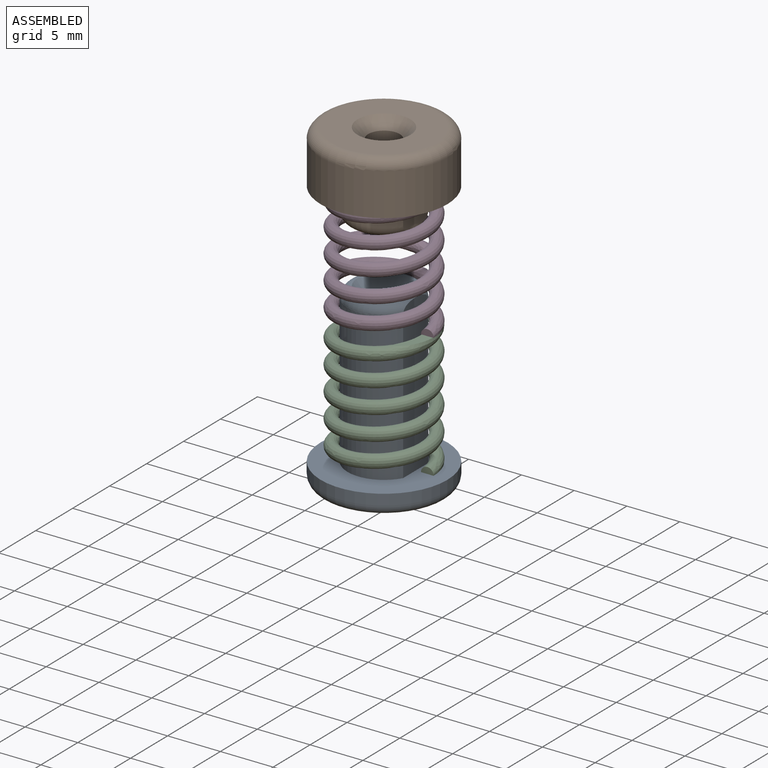
[diagram: assembled view]
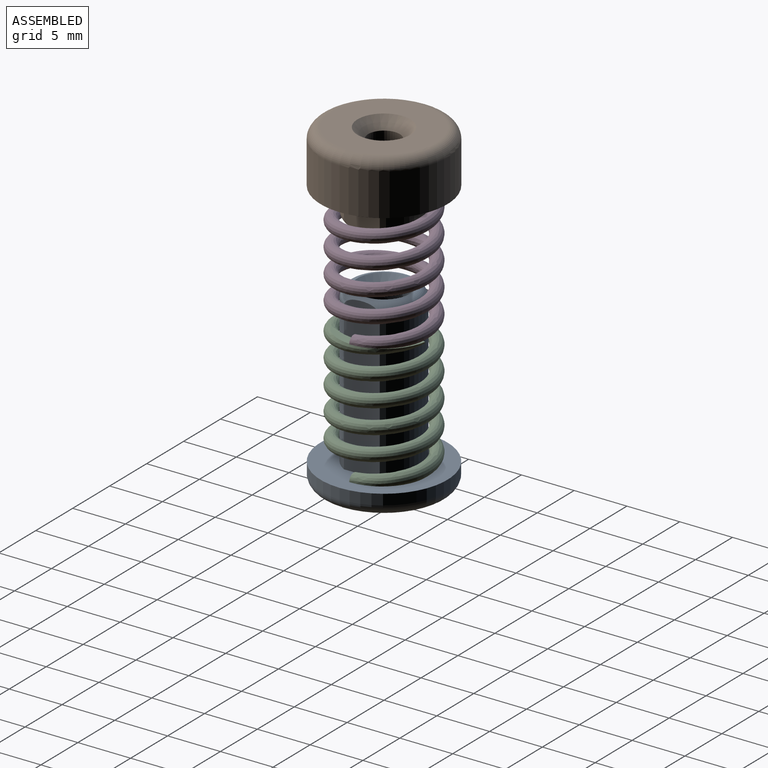
[diagram: assembled view, second angle]
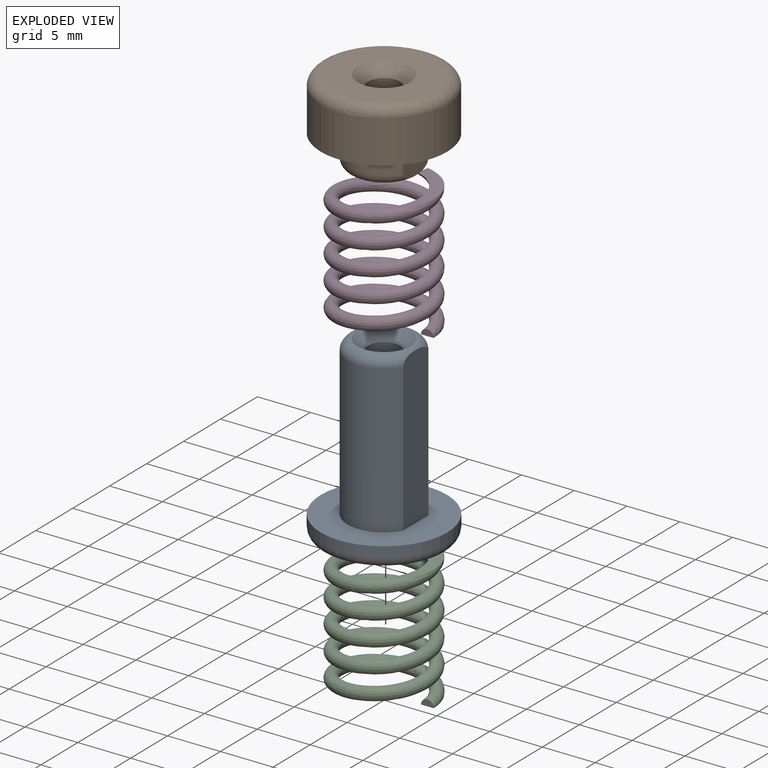
[diagram: exploded view]
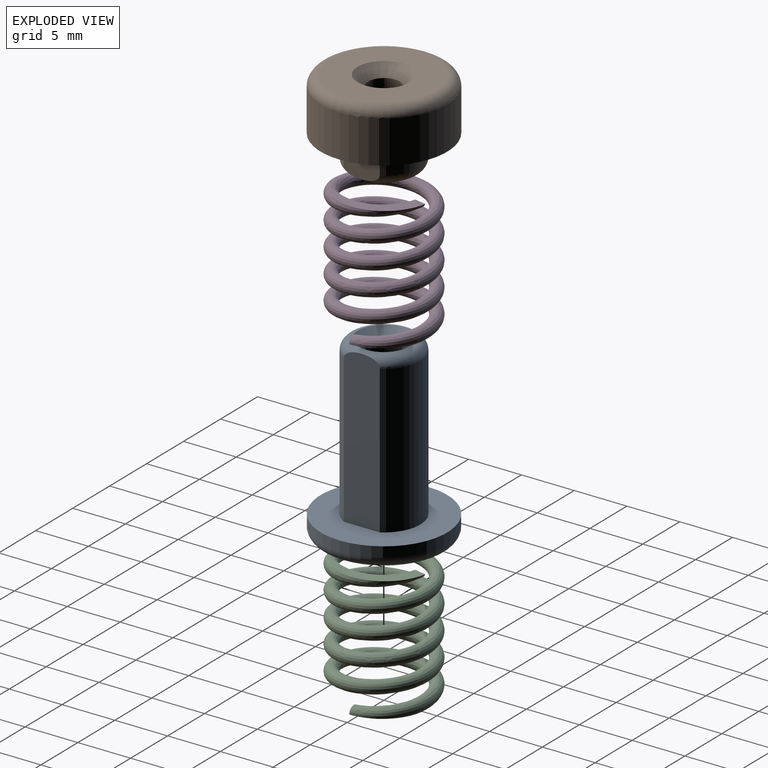
[diagram: exploded view, second angle]
ASSEMBLY  parts=4 mates=4
PART A: 12 faces, bbox 13x13x17 mm
  f0: cylinder r=3.45mm len=14mm, axis (0,0,-1), area 101.8mm2, adj f2,f6,f7,f8
  f1: cylinder r=3.45mm len=14mm, axis (0,0,-1), area 101.8mm2, adj f2,f6,f7,f8
  f2: plane 12x12mm, normal (0,0,1), area 77.8mm2, adj f0,f1,f3,f6,f7
  f3: cylinder r=6mm len=12mm, axis (0,0,-1), area 37.7mm2, adj f2,f9
  f4: plane 10x10mm, normal (0,0,-1), area 58.9mm2, adj f9,f10
  f5: cylinder r=1.5mm len=15mm, axis (0,0,-1), area 141.4mm2, adj f10,f11
  f6: plane 14.84x3.41mm, normal (1,0,0), area 50mm2, adj f0,f1,f2,f8
  f7: plane 14.84x3.41mm, normal (-1,0,0), area 50mm2, adj f0,f1,f2,f8
  f8: torus R=2.45mm, axis (0,0,-1), area 24.3mm2, adj f0,f1,f6,f7,f11
  f9: torus R=5mm, axis (0,0,1), area 55.6mm2, adj f3,f4
  f10: cone r=1.5mm half-angle=45deg, axis (0,0,-1), area 17.8mm2, adj f4,f5
  f11: cone r=2.5mm half-angle=45deg, axis (0,0,1), area 17.7mm2, adj f5,f8
PART B: 12 faces, bbox 13x13x8 mm
  f0: cylinder r=3.45mm len=6mm, axis (0,0,-1), area 14.5mm2, adj f3,f7,f8,f11
  f1: cylinder r=3.45mm len=6mm, axis (0,0,-1), area 14.5mm2, adj f3,f7,f8,f11
  f2: plane 4.9x4.9mm, normal (0,0,1), area 11.8mm2, adj f6,f11
  f3: plane 12x12mm, normal (0,0,1), area 77.8mm2, adj f0,f1,f4,f7,f8
  f4: cylinder r=6mm len=12mm, axis (0,0,-1), area 150.8mm2, adj f3,f9
  f5: plane 10x10mm, normal (0,0,-1), area 58.9mm2, adj f9,f10
  f6: cylinder r=1.5mm len=7mm, axis (0,0,-1), area 66mm2, adj f2,f10
  f7: plane 3.41x2.84mm, normal (1,0,0), area 9.1mm2, adj f0,f1,f3,f11
  f8: plane 3.41x2.84mm, normal (-1,0,0), area 9.1mm2, adj f0,f1,f3,f11
  f9: torus R=5mm, axis (0,0,1), area 55.6mm2, adj f4,f5
  f10: cone r=1.5mm half-angle=45deg, axis (0,0,-1), area 17.8mm2, adj f5,f6
  f11: torus R=2.45mm, axis (0,0,-1), area 25.1mm2, adj f0,f1,f2,f7,f8
PART C: 5 faces, bbox 9.6x9.5x13.4 mm
  f0: plane 1.37x0.77mm, normal (0,-1,0), area 0.6mm2, adj f1,f4
  f1: bspline ~13.19x9.37mm, area 487.1mm2, adj f0,f2,f3,f4
  f2: plane 1.24x0.53mm, normal (-0.98,0.2,0), area 0.3mm2, adj f1,f3
  f3: plane 7.56x3.91mm, normal (0,0,1), area 8.9mm2, adj f1,f2
  f4: plane 5.01x4.4mm, normal (0,0,-1), area 6.2mm2, adj f0,f1
PART D: same geometry as C
PLACE A at identity fixed
PLACE B rot(axis=(1,0,0),180deg) t=(0,0,23.6)mm
PLACE C at identity fixed
PLACE D t=(0,0,11.8)mm
MATE slider D.f4 <-> A.f0  axis (0,0,1) through (0,0,11.8)mm
MATE planar B.f0 <-> D.f3  axis (0,0,-1) through (0,0,23.6)mm
MATE cylindrical B.f6 <-> D.f4  axis (0,0,1) through (0,0,28.6)mm
MATE planar D.f4 <-> C.f3  axis (0,0,-1) through (2.88,2.39,11.8)mm
